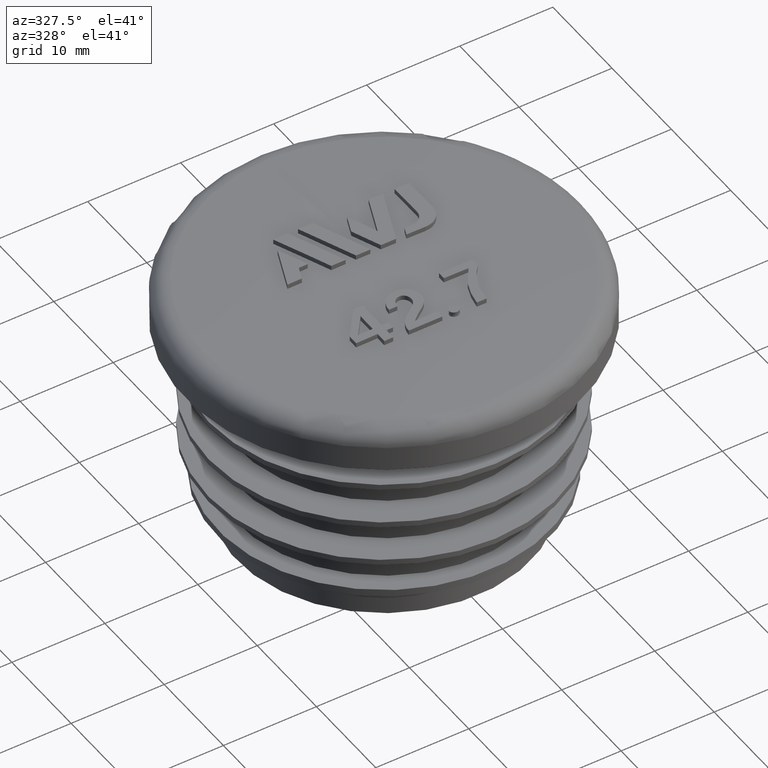
[diagram: clean part render]
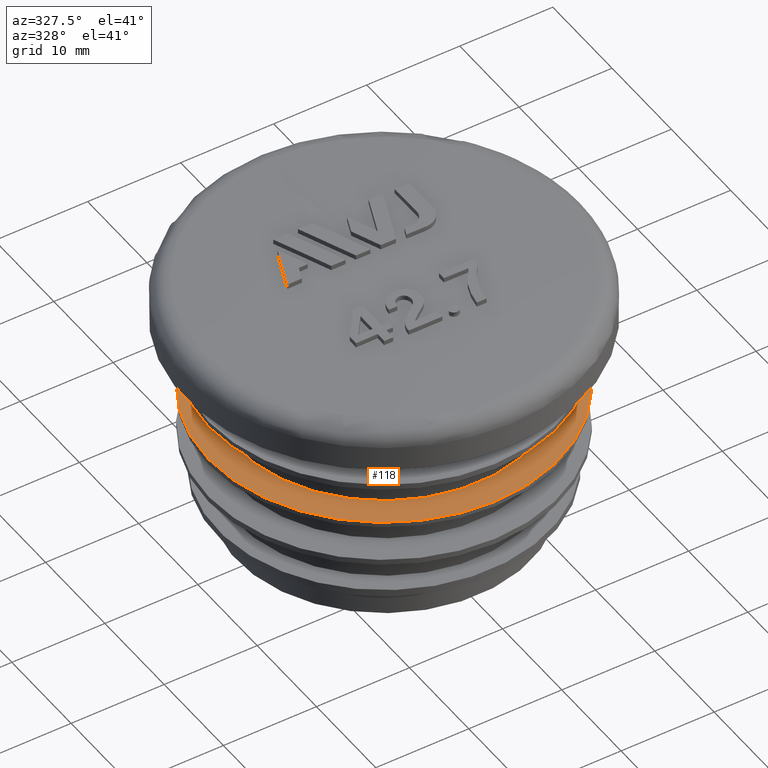
[diagram: same view with one face highlighted and labeled with its STEP entity id]
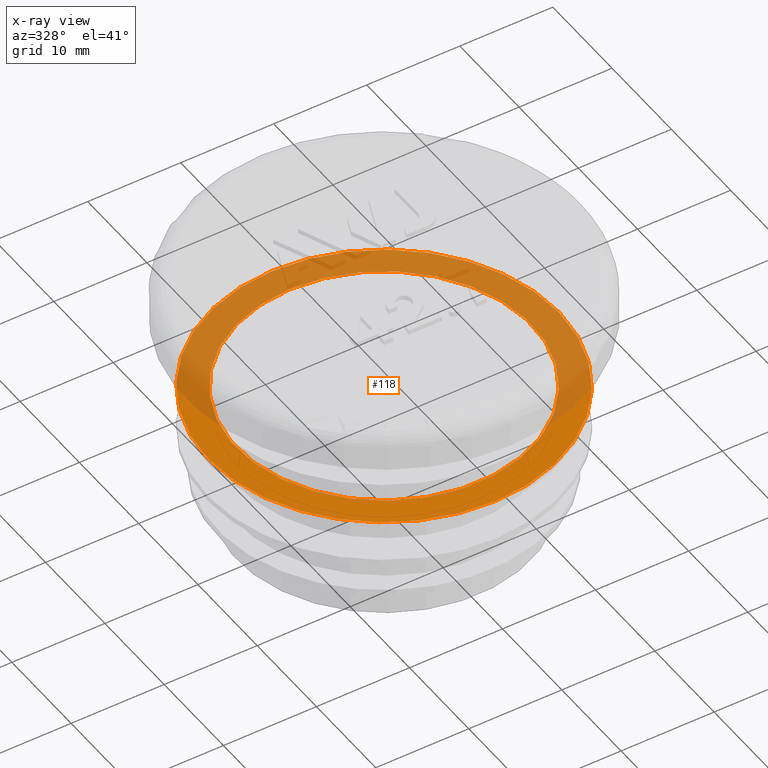
[diagram: x-ray of the same camera — body ghosted, the highlighted face saturated]
A machine part, auxiliary view. The second image highlights one B-rep face of the part: STEP entity #118.
The next image is the same camera in x-ray: the body ghosted, the highlighted face saturated — about 55% of this face is hidden behind the body in this view.
In plain terms, the highlighted planar face has unit normal (0, -0, -1).
Its self-contained STEP definition (entity closure, byte-faithful):
#118 = ADVANCED_FACE( '', ( #273, #274 ), #275, .F. );
#273 = FACE_OUTER_BOUND( '', #661, .T. );
#274 = FACE_BOUND( '', #662, .T. );
#275 = PLANE( '', #663 );
#661 = EDGE_LOOP( '', ( #1228 ) );
#662 = EDGE_LOOP( '', ( #1229 ) );
#663 = AXIS2_PLACEMENT_3D( '', #1230, #1231, #1232 );
#1228 = ORIENTED_EDGE( '', *, *, #1652, .F. );
#1229 = ORIENTED_EDGE( '', *, *, #1651, .T. );
#1230 = CARTESIAN_POINT( '', ( -15.8500000000000, -5.20457700374511E-016, 13.5000000000000 ) );
#1231 = DIRECTION( '', ( 0.000000000000000, -6.12303176911189E-017, -1.00000000000000 ) );
#1232 = DIRECTION( '', ( 0.000000000000000, 1.00000000000000, -6.12303176911189E-017 ) );
#1651 = EDGE_CURVE( '', #1939, #1939, #1940, .T. );
#1652 = EDGE_CURVE( '', #1941, #1941, #1942, .T. );
#1939 = VERTEX_POINT( '', #2929 );
#1940 = CIRCLE( '', #2930, 15.8500000000000 );
#1941 = VERTEX_POINT( '', #2931 );
#1942 = CIRCLE( '', #2932, 18.8500000000000 );
#2929 = CARTESIAN_POINT( '', ( 0.000000000000000, 15.8500000000000, 13.5000000000000 ) );
#2930 = AXIS2_PLACEMENT_3D( '', #3222, #3223, #3224 );
#2931 = CARTESIAN_POINT( '', ( 0.000000000000000, 18.8500000000000, 13.5000000000000 ) );
#2932 = AXIS2_PLACEMENT_3D( '', #3225, #3226, #3227 );
#3222 = CARTESIAN_POINT( '', ( 0.000000000000000, -5.20457700374511E-016, 13.5000000000000 ) );
#3223 = DIRECTION( '', ( 0.000000000000000, -6.12303176911189E-017, -1.00000000000000 ) );
#3224 = DIRECTION( '', ( 0.000000000000000, 1.00000000000000, -6.12303176911189E-017 ) );
#3225 = CARTESIAN_POINT( '', ( 0.000000000000000, -5.20457700374510E-016, 13.5000000000000 ) );
#3226 = DIRECTION( '', ( 0.000000000000000, -6.12303176911189E-017, -1.00000000000000 ) );
#3227 = DIRECTION( '', ( 0.000000000000000, 1.00000000000000, -6.12303176911189E-017 ) );